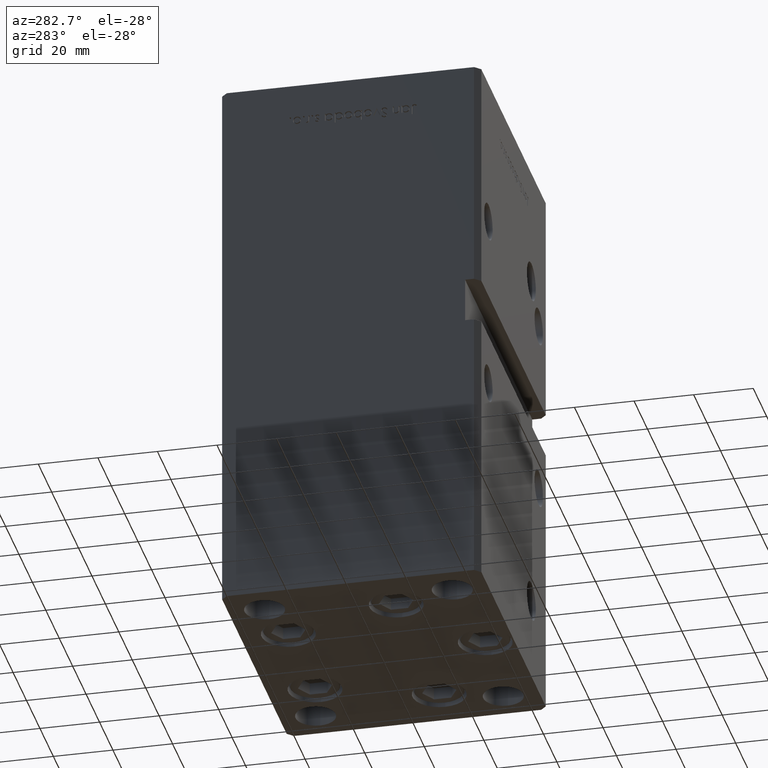
[diagram: clean part render]
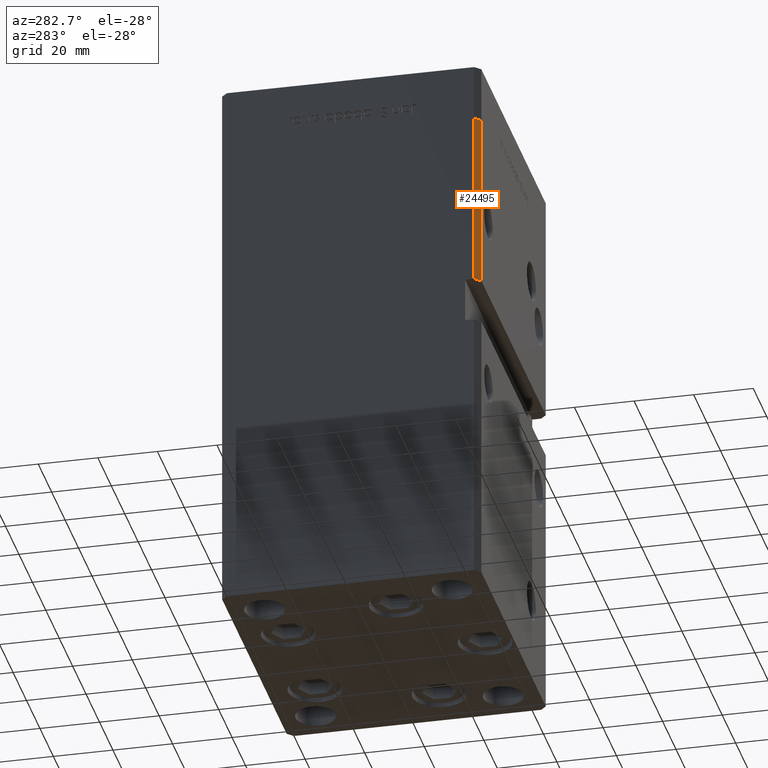
[diagram: same view with one face highlighted and labeled with its STEP entity id]
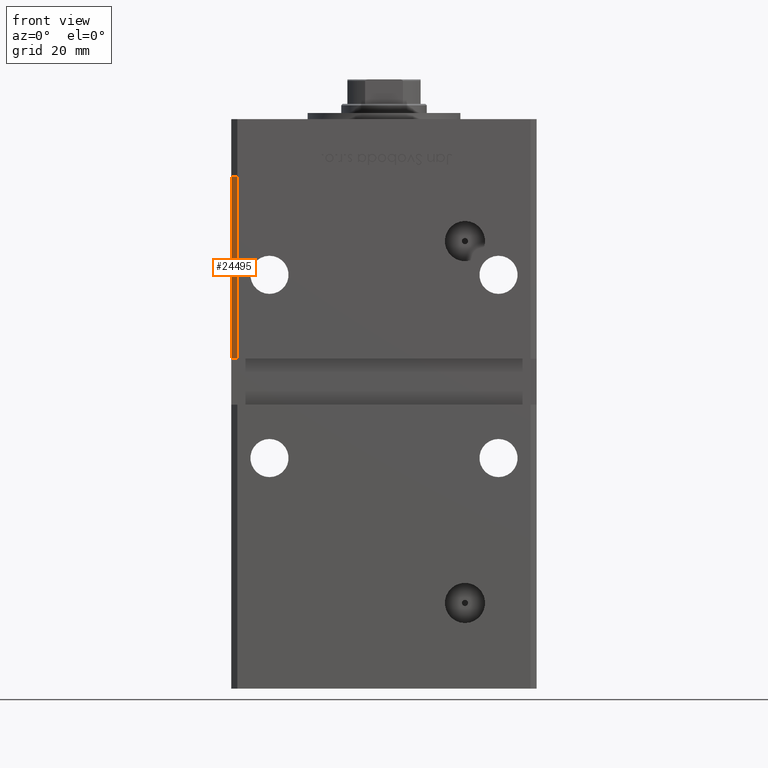
[diagram: same view with one face highlighted and labeled with its STEP entity id]
A machine part, auxiliary view. The second image highlights one B-rep face of the part: STEP entity #24495.
A second angle (front view) of the same face is appended — the face is thin or edge-on in the first view.
In plain terms, the highlighted planar face has unit normal (0.7071, 0.7071, 0).
Its self-contained STEP definition (entity closure, byte-faithful):
#2042 = EDGE_CURVE ( 'NONE', #13053, #30481, #24657, .T. ) ;
#2314 = VERTEX_POINT ( 'NONE', #24589 ) ;
#3083 = DIRECTION ( 'NONE',  ( 0.7071067811865474617, -0.7071067811865474617, 0.000000000000000000 ) ) ;
#5790 = VECTOR ( 'NONE', #27407, 1000.000000000000000 ) ;
#7111 = LINE ( 'NONE', #39873, #30996 ) ;
#12220 = VECTOR ( 'NONE', #34035, 1000.000000000000114 ) ;
#13053 = VERTEX_POINT ( 'NONE', #34453 ) ;
#14878 = EDGE_LOOP ( 'NONE', ( #26792, #22426, #43129, #21021 ) ) ;
#15063 = LINE ( 'NONE', #30635, #5790 ) ;
#16617 = CARTESIAN_POINT ( 'NONE',  ( -49.99999999999998579, -41.49999999999999289, 148.5000000000000000 ) ) ;
#19512 = AXIS2_PLACEMENT_3D ( 'NONE', #40028, #44847, #28715 ) ;
#20147 = FACE_OUTER_BOUND ( 'NONE', #14878, .T. ) ;
#21021 = ORIENTED_EDGE ( 'NONE', *, *, #2042, .F. ) ;
#22426 = ORIENTED_EDGE ( 'NONE', *, *, #44202, .T. ) ;
#24317 = EDGE_CURVE ( 'NONE', #30481, #2314, #15063, .T. ) ;
#24495 = ADVANCED_FACE ( 'NONE', ( #20147 ), #40298, .F. ) ;
#24589 = CARTESIAN_POINT ( 'NONE',  ( -47.99999999999998579, -43.50000000000000000, 89.00000000000000000 ) ) ;
#24657 = LINE ( 'NONE', #16617, #12220 ) ;
#26792 = ORIENTED_EDGE ( 'NONE', *, *, #28990, .T. ) ;
#27407 = DIRECTION ( 'NONE',  ( -0.000000000000000000, -0.000000000000000000, -1.000000000000000000 ) ) ;
#28715 = DIRECTION ( 'NONE',  ( -0.7071067811865474617, 0.7071067811865474617, 0.000000000000000000 ) ) ;
#28990 = EDGE_CURVE ( 'NONE', #13053, #41186, #47385, .T. ) ;
#30481 = VERTEX_POINT ( 'NONE', #49355 ) ;
#30635 = CARTESIAN_POINT ( 'NONE',  ( -47.99999999999998579, -43.50000000000000000, 148.5000000000000000 ) ) ;
#30996 = VECTOR ( 'NONE', #3083, 1000.000000000000114 ) ;
#34035 = DIRECTION ( 'NONE',  ( 0.7071067811865474617, -0.7071067811865474617, 0.000000000000000000 ) ) ;
#34453 = CARTESIAN_POINT ( 'NONE',  ( -49.99999999999998579, -41.49999999999999289, 148.5000000000000000 ) ) ;
#37490 = VECTOR ( 'NONE', #47122, 1000.000000000000000 ) ;
#39873 = CARTESIAN_POINT ( 'NONE',  ( -49.99999999999998579, -41.49999999999999289, 89.00000000000000000 ) ) ;
#40028 = CARTESIAN_POINT ( 'NONE',  ( -49.99999999999998579, -41.49999999999999289, 148.5000000000000000 ) ) ;
#40298 = PLANE ( 'NONE',  #19512 ) ;
#41186 = VERTEX_POINT ( 'NONE', #53140 ) ;
#43129 = ORIENTED_EDGE ( 'NONE', *, *, #24317, .F. ) ;
#43880 = CARTESIAN_POINT ( 'NONE',  ( -49.99999999999998579, -41.49999999999999289, 148.5000000000000000 ) ) ;
#44202 = EDGE_CURVE ( 'NONE', #41186, #2314, #7111, .T. ) ;
#44847 = DIRECTION ( 'NONE',  ( 0.7071067811865475727, 0.7071067811865475727, -0.000000000000000000 ) ) ;
#47122 = DIRECTION ( 'NONE',  ( -0.000000000000000000, -0.000000000000000000, -1.000000000000000000 ) ) ;
#47385 = LINE ( 'NONE', #43880, #37490 ) ;
#49355 = CARTESIAN_POINT ( 'NONE',  ( -47.99999999999998579, -43.50000000000000000, 148.5000000000000000 ) ) ;
#53140 = CARTESIAN_POINT ( 'NONE',  ( -49.99999999999998579, -41.49999999999999289, 89.00000000000000000 ) ) ;